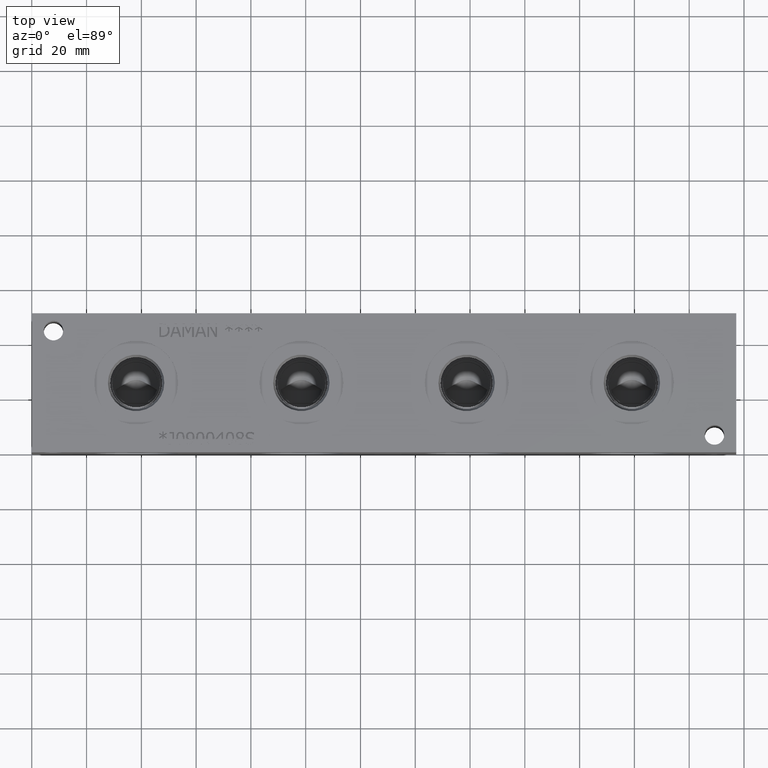
[diagram: clean part render]
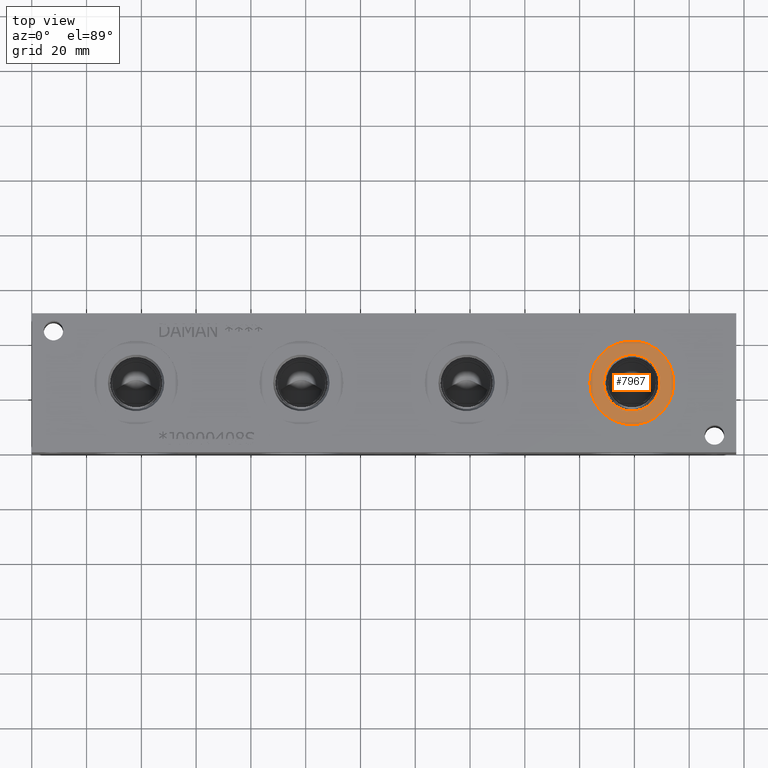
[diagram: same view with one face highlighted and labeled with its STEP entity id]
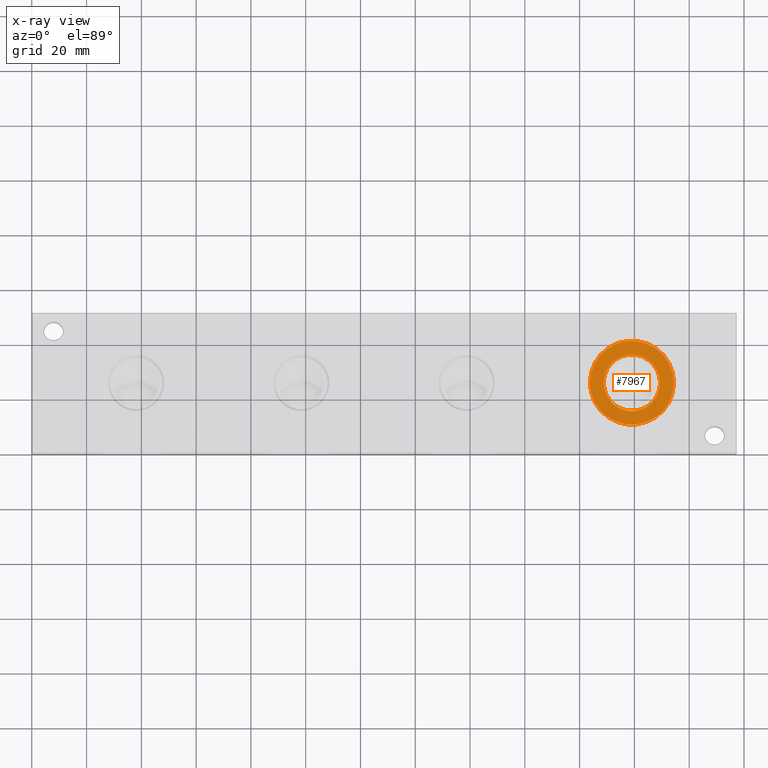
[diagram: x-ray of the same camera — body ghosted, the highlighted face saturated]
A machine part, top view. The second image highlights one B-rep face of the part: STEP entity #7967.
The next image is the same camera in x-ray: the body ghosted, the highlighted face saturated — about 0% of this face is hidden behind the body in this view.
In plain terms, the highlighted planar face has unit normal (0, 0, -1).
Its self-contained STEP definition (entity closure, byte-faithful):
#214=CIRCLE('',#8395,15.3162);
#215=CIRCLE('',#8396,15.3162);
#216=CIRCLE('',#8398,10.2997);
#217=CIRCLE('',#8399,10.2997);
#314=FACE_BOUND('',#1384,.T.);
#540=PLANE('',#8397);
#922=FACE_OUTER_BOUND('',#1383,.T.);
#1383=EDGE_LOOP('',(#6922,#6923));
#1384=EDGE_LOOP('',(#6924,#6925));
#3768=VERTEX_POINT('',#13866);
#3769=VERTEX_POINT('',#13868);
#3770=VERTEX_POINT('',#13872);
#3771=VERTEX_POINT('',#13873);
#4846=EDGE_CURVE('',#3768,#3769,#214,.T.);
#4847=EDGE_CURVE('',#3769,#3768,#215,.T.);
#4848=EDGE_CURVE('',#3770,#3771,#216,.T.);
#4849=EDGE_CURVE('',#3771,#3770,#217,.T.);
#6922=ORIENTED_EDGE('',*,*,#4847,.F.);
#6923=ORIENTED_EDGE('',*,*,#4846,.F.);
#6924=ORIENTED_EDGE('',*,*,#4848,.T.);
#6925=ORIENTED_EDGE('',*,*,#4849,.T.);
#7967=ADVANCED_FACE('',(#922,#314),#540,.F.);
#8395=AXIS2_PLACEMENT_3D('',#13869,#9898,#9899);
#8396=AXIS2_PLACEMENT_3D('',#13870,#9900,#9901);
#8397=AXIS2_PLACEMENT_3D('',#13871,#9902,#9903);
#8398=AXIS2_PLACEMENT_3D('',#13874,#9904,#9905);
#8399=AXIS2_PLACEMENT_3D('',#13875,#9906,#9907);
#9898=DIRECTION('center_axis',(0.,0.,-1.));
#9899=DIRECTION('ref_axis',(1.,0.,0.));
#9900=DIRECTION('center_axis',(0.,0.,-1.));
#9901=DIRECTION('ref_axis',(1.,0.,0.));
#9902=DIRECTION('center_axis',(0.,0.,-1.));
#9903=DIRECTION('ref_axis',(-1.,0.,0.));
#9904=DIRECTION('center_axis',(0.,0.,-1.));
#9905=DIRECTION('ref_axis',(1.,0.,0.));
#9906=DIRECTION('center_axis',(0.,0.,-1.));
#9907=DIRECTION('ref_axis',(1.,0.,0.));
#13866=CARTESIAN_POINT('',(203.7588,25.4,50.0126));
#13868=CARTESIAN_POINT('',(234.3912,25.4,50.0126));
#13869=CARTESIAN_POINT('Origin',(219.075,25.4,50.0126));
#13870=CARTESIAN_POINT('Origin',(219.075,25.4,50.0126));
#13871=CARTESIAN_POINT('Origin',(229.3747,25.4,50.0126));
#13872=CARTESIAN_POINT('',(229.3747,25.4,50.0126));
#13873=CARTESIAN_POINT('',(208.7753,25.4,50.0126));
#13874=CARTESIAN_POINT('Origin',(219.075,25.4,50.0126));
#13875=CARTESIAN_POINT('Origin',(219.075,25.4,50.0126));